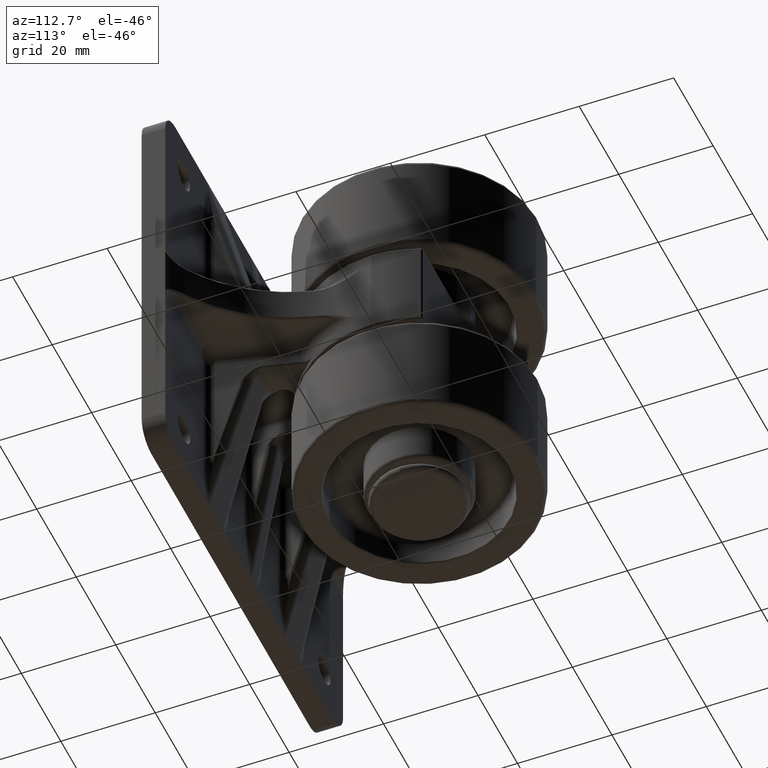
[diagram: clean part render]
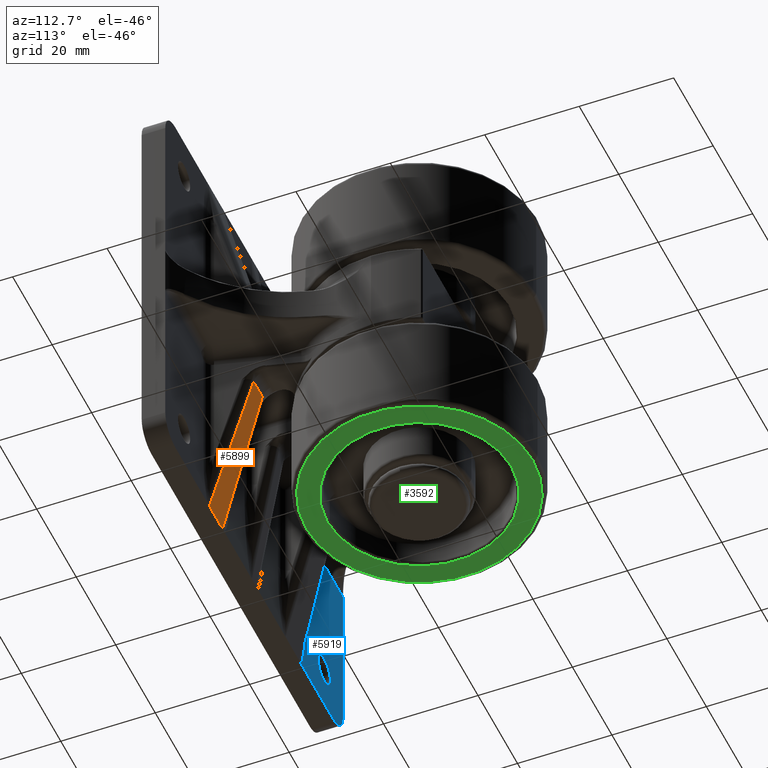
[diagram: same view with three faces highlighted in distinct colors, each labeled with its STEP entity id]
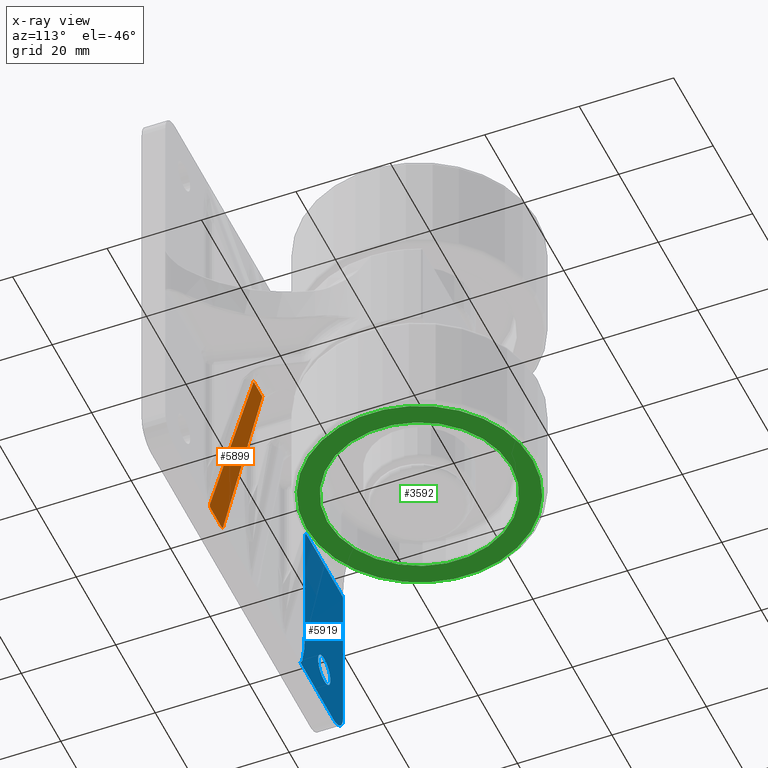
[diagram: x-ray of the same camera — body ghosted, the three highlighted faces saturated]
A machine part, auxiliary view with three faces highlighted in distinct colors.
The next image is the same camera in x-ray (body ghosted, the three faces saturated) — at least one of them is partly hidden behind the body in this view.
Their STEP definitions:

[orange] entity #5899 — the highlighted planar face has unit normal (0, -0.9701, 0.2425).
#46 = VERTEX_POINT ( 'NONE', #3412 ) ;
#1014 = EDGE_CURVE ( 'NONE', #4439, #14227, #8808, .T. ) ;
#1545 = VECTOR ( 'NONE', #16848, 1000.000000000000100 ) ;
#1909 = VECTOR ( 'NONE', #9822, 999.9999999999998900 ) ;
#2310 = CARTESIAN_POINT ( 'NONE',  ( 45.00000000000000700, -35.00000000000000000, -28.43722441833322600 ) ) ;
#2373 = PLANE ( 'NONE',  #8113 ) ;
#2593 = VERTEX_POINT ( 'NONE', #6620 ) ;
#3112 = EDGE_CURVE ( 'NONE', #2593, #8558, #12037, .T. ) ;
#3412 = CARTESIAN_POINT ( 'NONE',  ( 11.27239312489100000, -26.56809828122275300, -28.99999999999999600 ) ) ;
#3593 = ORIENTED_EDGE ( 'NONE', *, *, #1014, .T. ) ;
#3681 = DIRECTION ( 'NONE',  ( -0.2425356250363329700, -0.9701425001453318800, 0.0000000000000000000 ) ) ;
#4439 = VERTEX_POINT ( 'NONE', #14460 ) ;
#4549 = VERTEX_POINT ( 'NONE', #17006 ) ;
#5118 = CARTESIAN_POINT ( 'NONE',  ( 44.76114000116265100, -34.94028500029065000, -22.33299336004344900 ) ) ;
#5208 = CARTESIAN_POINT ( 'NONE',  ( 44.90991532345560000, -34.97747883086390200, -22.54067233801642400 ) ) ;
#5502 = VECTOR ( 'NONE', #16008, 1000.000000000000000 ) ;
#5568 = ORIENTED_EDGE ( 'NONE', *, *, #14945, .T. ) ;
#5733 = VECTOR ( 'NONE', #10384, 1000.000000000000000 ) ;
#5899 = ADVANCED_FACE ( 'NONE', ( #12011 ), #2373, .F. ) ;
#6168 = CARTESIAN_POINT ( 'NONE',  ( 9.000000000000000000, -26.00000000000000000, -90.00005000000000200 ) ) ;
#6339 = CARTESIAN_POINT ( 'NONE',  ( 44.76114000116265100, -34.94028500029065000, -28.99999999999999600 ) ) ;
#6434 = CARTESIAN_POINT ( 'NONE',  ( 44.76114000116265100, -34.94028500029065000, -22.33299336004344900 ) ) ;
#6491 = CARTESIAN_POINT ( 'NONE',  ( 45.00000000000000000, -35.00000000000000000, -22.91015419044200000 ) ) ;
#6620 = CARTESIAN_POINT ( 'NONE',  ( 11.27239312489100000, -26.56809828122275300, -24.57631403030020000 ) ) ;
#7347 = CARTESIAN_POINT ( 'NONE',  ( 9.000000000000000000, -26.00000000000000000, -28.99999999999999600 ) ) ;
#7559 = CARTESIAN_POINT ( 'NONE',  ( 44.98443717595908700, -34.99610929398976100, -28.56024113981465000 ) ) ;
#7686 = CARTESIAN_POINT ( 'NONE',  ( 45.00000000000000000, -35.00000000000000000, -90.00005000000000200 ) ) ;
#8113 = AXIS2_PLACEMENT_3D ( 'NONE', #6168, #3681, #12939 ) ;
#8558 = VERTEX_POINT ( 'NONE', #5118 ) ;
#8808 = B_SPLINE_CURVE_WITH_KNOTS ( 'NONE', 3,
 ( #8853, #2310, #7559, #10900, #13511, #15759, #17072, #9517 ),
 .UNSPECIFIED., .F., .F.,
 ( 4, 2, 2, 4 ),
 ( 0.0000000000000000000, 0.0003718323462449313800, 0.0005577485193673921400, 0.0007436646924898529000 ),
 .UNSPECIFIED. ) ;
#8853 = CARTESIAN_POINT ( 'NONE',  ( 45.00000000000000000, -35.00000000000000000, -28.31141150424624800 ) ) ;
#9161 = CARTESIAN_POINT ( 'NONE',  ( 11.27239312489100000, -26.56809828122275300, -90.00005000000000200 ) ) ;
#9302 = LINE ( 'NONE', #7686, #5733 ) ;
#9517 = CARTESIAN_POINT ( 'NONE',  ( 44.76114000116265100, -34.94028500029065000, -28.99999999999999600 ) ) ;
#9822 = DIRECTION ( 'NONE',  ( 0.9681003458863748400, -0.2420250864715939900, 0.06485042646813468600 ) ) ;
#9882 = CARTESIAN_POINT ( 'NONE',  ( 45.09735276097929800, -35.02433819024479800, -22.31047137567394500 ) ) ;
#10384 = DIRECTION ( 'NONE',  ( 0.0000000000000000000, 0.0000000000000000000, 1.000000000000000000 ) ) ;
#10536 = CARTESIAN_POINT ( 'NONE',  ( 44.84907020209227800, -34.96226755052306600, -22.42524144705293700 ) ) ;
#10667 = ORIENTED_EDGE ( 'NONE', *, *, #15990, .T. ) ;
#10900 = CARTESIAN_POINT ( 'NONE',  ( 44.92767085061632300, -34.98191771265408800, -28.73876123228268800 ) ) ;
#11239 = EDGE_LOOP ( 'NONE', ( #5568, #12252, #15908, #10667, #12792, #3593 ) ) ;
#12011 = FACE_OUTER_BOUND ( 'NONE', #11239, .T. ) ;
#12037 = LINE ( 'NONE', #9882, #1909 ) ;
#12252 = ORIENTED_EDGE ( 'NONE', *, *, #13214, .T. ) ;
#12647 = LINE ( 'NONE', #9161, #5502 ) ;
#12792 = ORIENTED_EDGE ( 'NONE', *, *, #14250, .F. ) ;
#12939 = DIRECTION ( 'NONE',  ( 0.9701425001453318800, -0.2425356250363329700, 0.0000000000000000000 ) ) ;
#13214 = EDGE_CURVE ( 'NONE', #46, #2593, #12647, .T. ) ;
#13511 = CARTESIAN_POINT ( 'NONE',  ( 44.90291675263617300, -34.97572918815905000, -28.79699370719625800 ) ) ;
#13904 = B_SPLINE_CURVE_WITH_KNOTS ( 'NONE', 3,
 ( #6434, #10536, #5208, #14595, #6491, #15994 ),
 .UNSPECIFIED., .F., .F.,
 ( 4, 2, 4 ),
 ( -8.982169361653270200E-006, 0.0003789894285219918000, 0.0007669610264056369300 ),
 .UNSPECIFIED. ) ;
#14227 = VERTEX_POINT ( 'NONE', #6339 ) ;
#14250 = EDGE_CURVE ( 'NONE', #4439, #4549, #9302, .T. ) ;
#14460 = CARTESIAN_POINT ( 'NONE',  ( 45.00000000000000000, -35.00000000000000000, -28.31141150424624800 ) ) ;
#14595 = CARTESIAN_POINT ( 'NONE',  ( 44.98479057248556500, -34.99619764312139800, -22.78440645383541600 ) ) ;
#14945 = EDGE_CURVE ( 'NONE', #14227, #46, #15221, .T. ) ;
#15221 = LINE ( 'NONE', #7347, #1545 ) ;
#15759 = CARTESIAN_POINT ( 'NONE',  ( 44.84166357963565700, -34.96041589490890500, -28.90472277921506700 ) ) ;
#15908 = ORIENTED_EDGE ( 'NONE', *, *, #3112, .T. ) ;
#15990 = EDGE_CURVE ( 'NONE', #8558, #4549, #13904, .T. ) ;
#15994 = CARTESIAN_POINT ( 'NONE',  ( 45.00000000000000000, -35.00000000000000000, -23.03855724368759900 ) ) ;
#16008 = DIRECTION ( 'NONE',  ( 0.0000000000000000000, 0.0000000000000000000, 1.000000000000000000 ) ) ;
#16848 = DIRECTION ( 'NONE',  ( -0.9701425001453318800, 0.2425356250363329700, 0.0000000000000000000 ) ) ;
#17006 = CARTESIAN_POINT ( 'NONE',  ( 45.00000000000000000, -35.00000000000000000, -23.03855724368759900 ) ) ;
#17072 = CARTESIAN_POINT ( 'NONE',  ( 44.80338272205052200, -34.95084568051262200, -28.95590282886919900 ) ) ;

[blue] entity #5919 — the highlighted planar face has unit normal (0, -1, 0).
#205 = LINE ( 'NONE', #6432, #16957 ) ;
#466 = EDGE_CURVE ( 'NONE', #8435, #7452, #6379, .T. ) ;
#719 =( BOUNDED_CURVE ( )  B_SPLINE_CURVE ( 3, ( #16302, #8111, #5561, #14986 ),
 .UNSPECIFIED., .F., .F. ) 
 B_SPLINE_CURVE_WITH_KNOTS ( ( 4, 4 ),
 ( 3.141592653589793100, 4.712388980384689700 ),
 .UNSPECIFIED. ) 
 CURVE ( )  GEOMETRIC_REPRESENTATION_ITEM ( )  RATIONAL_B_SPLINE_CURVE ( ( 1.000000000000000000, 0.8047378541243649400, 0.8047378541243649400, 1.000000000000000000 ) ) 
 REPRESENTATION_ITEM ( '' )  );
#864 = EDGE_LOOP ( 'NONE', ( #7054, #1249 ) ) ;
#928 = LINE ( 'NONE', #12136, #3924 ) ;
#1221 = CARTESIAN_POINT ( 'NONE',  ( 39.33976415181397400, -35.00000000000000000, -70.76831576376885400 ) ) ;
#1249 = ORIENTED_EDGE ( 'NONE', *, *, #1804, .F. ) ;
#1271 = EDGE_CURVE ( 'NONE', #15076, #5981, #9309, .T. ) ;
#1276 = CARTESIAN_POINT ( 'NONE',  ( 45.00000000000000000, -35.00000000000000000, -68.34152482668290000 ) ) ;
#1429 = CIRCLE ( 'NONE', #4564, 4.999999999999997300 ) ;
#1723 = VERTEX_POINT ( 'NONE', #4187 ) ;
#1804 = EDGE_CURVE ( 'NONE', #7452, #8435, #11028, .T. ) ;
#1869 = CARTESIAN_POINT ( 'NONE',  ( 6.149850896737677700, -35.00000000000000000, -89.95658398666535000 ) ) ;
#2139 = CARTESIAN_POINT ( 'NONE',  ( 0.0000000000000000000, -35.00000000000000000, -70.76831576376879700 ) ) ;
#2432 = DIRECTION ( 'NONE',  ( 1.000000000000000000, 0.0000000000000000000, 0.0000000000000000000 ) ) ;
#2488 = CARTESIAN_POINT ( 'NONE',  ( 43.85381414279417100, -35.00000000000000000, -69.86335424353150400 ) ) ;
#2841 = AXIS2_PLACEMENT_3D ( 'NONE', #14443, #11768, #7796 ) ;
#3084 = EDGE_LOOP ( 'NONE', ( #7316, #5312, #4134, #9319, #8734, #15449, #6737, #7333 ) ) ;
#3160 = CARTESIAN_POINT ( 'NONE',  ( 6.000000000000000000, -35.00000000000000000, -89.89307112336760500 ) ) ;
#3404 = CARTESIAN_POINT ( 'NONE',  ( 7.000000000000000000, -35.00000000000000000, -70.76831576376879700 ) ) ;
#3796 = CARTESIAN_POINT ( 'NONE',  ( 45.00000000000000000, -35.00000000000000000, -68.34152482668290000 ) ) ;
#3924 = VECTOR ( 'NONE', #10788, 1000.000000000000000 ) ;
#4134 = ORIENTED_EDGE ( 'NONE', *, *, #13320, .T. ) ;
#4151 =( BOUNDED_CURVE ( )  B_SPLINE_CURVE ( 3, ( #11761, #1221, #2488, #3796 ),
 .UNSPECIFIED., .F., .T. ) 
 B_SPLINE_CURVE_WITH_KNOTS ( ( 4, 4 ),
 ( 4.982407733297762300, 6.126387574059618800 ),
 .UNSPECIFIED. ) 
 CURVE ( )  GEOMETRIC_REPRESENTATION_ITEM ( )  RATIONAL_B_SPLINE_CURVE ( ( 1.000000000000000000, 0.8938836561245935300, 0.8938836561245935300, 1.000000000000000000 ) ) 
 REPRESENTATION_ITEM ( '' )  );
#4187 = CARTESIAN_POINT ( 'NONE',  ( 6.000000000000000000, -35.00000000000000000, -71.80359194417890500 ) ) ;
#4445 = CARTESIAN_POINT ( 'NONE',  ( 32.89489347040505200, -35.00000000000000000, -70.76831576376879700 ) ) ;
#4564 = AXIS2_PLACEMENT_3D ( 'NONE', #6563, #16063, #7901 ) ;
#4900 = CARTESIAN_POINT ( 'NONE',  ( 45.00000000000000000, -35.00000000000000000, -84.99999999999998600 ) ) ;
#5312 = ORIENTED_EDGE ( 'NONE', *, *, #13426, .T. ) ;
#5561 = CARTESIAN_POINT ( 'NONE',  ( 6.000000000000000000, -35.00000000000000000, -71.19714119849648200 ) ) ;
#5618 = EDGE_CURVE ( 'NONE', #16547, #1723, #719, .T. ) ;
#5739 = VECTOR ( 'NONE', #15310, 1000.000000000000000 ) ;
#5919 = ADVANCED_FACE ( 'NONE', ( #8360, #16046 ), #6230, .F. ) ;
#5944 = EDGE_CURVE ( 'NONE', #10999, #5981, #4151, .T. ) ;
#5981 = VERTEX_POINT ( 'NONE', #1276 ) ;
#6159 = CARTESIAN_POINT ( 'NONE',  ( 38.60000000000659500, -35.00000000000000000, -80.50000000000659400 ) ) ;
#6230 = PLANE ( 'NONE',  #10875 ) ;
#6379 = CIRCLE ( 'NONE', #2841, 3.099999999999998800 ) ;
#6432 = CARTESIAN_POINT ( 'NONE',  ( -45.00000000000000000, -35.00000000000000000, -90.00000000000000000 ) ) ;
#6563 = CARTESIAN_POINT ( 'NONE',  ( 40.00000000000000000, -35.00000000000000000, -84.99999999999998600 ) ) ;
#6737 = ORIENTED_EDGE ( 'NONE', *, *, #1271, .F. ) ;
#7054 = ORIENTED_EDGE ( 'NONE', *, *, #466, .F. ) ;
#7316 = ORIENTED_EDGE ( 'NONE', *, *, #11766, .F. ) ;
#7317 = DIRECTION ( 'NONE',  ( 1.000000000000000000, -0.0000000000000000000, -0.0000000000000000000 ) ) ;
#7333 = ORIENTED_EDGE ( 'NONE', *, *, #9113, .T. ) ;
#7452 = VERTEX_POINT ( 'NONE', #6159 ) ;
#7738 = CARTESIAN_POINT ( 'NONE',  ( 6.467218933359990100, -35.00000000000000000, -90.00000000000000000 ) ) ;
#7796 = DIRECTION ( 'NONE',  ( -1.000000000000000000, 0.0000000000000000000, 0.0000000000000000000 ) ) ;
#7901 = DIRECTION ( 'NONE',  ( 1.000000000000000000, 0.0000000000000000000, 0.0000000000000000000 ) ) ;
#8111 = CARTESIAN_POINT ( 'NONE',  ( 6.414213562373095800, -35.00000000000000000, -70.76831576376882500 ) ) ;
#8360 = FACE_BOUND ( 'NONE', #864, .T. ) ;
#8367 = VECTOR ( 'NONE', #7317, 1000.000000000000000 ) ;
#8435 = VERTEX_POINT ( 'NONE', #14122 ) ;
#8727 = AXIS2_PLACEMENT_3D ( 'NONE', #9264, #9840, #9859 ) ;
#8734 = ORIENTED_EDGE ( 'NONE', *, *, #16880, .T. ) ;
#9113 = EDGE_CURVE ( 'NONE', #15076, #10301, #1429, .T. ) ;
#9264 = CARTESIAN_POINT ( 'NONE',  ( 35.50000000000659400, -35.00000000000000000, -80.50000000000659400 ) ) ;
#9309 = LINE ( 'NONE', #16551, #5739 ) ;
#9319 = ORIENTED_EDGE ( 'NONE', *, *, #5618, .F. ) ;
#9708 = CARTESIAN_POINT ( 'NONE',  ( 6.306265749622666000, -35.00000000000000000, -89.99165059895679500 ) ) ;
#9840 = DIRECTION ( 'NONE',  ( 0.0000000000000000000, 1.000000000000000000, 0.0000000000000000000 ) ) ;
#9859 = DIRECTION ( 'NONE',  ( -1.000000000000000000, 0.0000000000000000000, 0.0000000000000000000 ) ) ;
#10301 = VERTEX_POINT ( 'NONE', #14462 ) ;
#10327 = DIRECTION ( 'NONE',  ( 0.0000000000000000000, -1.000000000000000000, 0.0000000000000000000 ) ) ;
#10788 = DIRECTION ( 'NONE',  ( 0.0000000000000000000, 0.0000000000000000000, 1.000000000000000000 ) ) ;
#10875 = AXIS2_PLACEMENT_3D ( 'NONE', #15709, #10327, #2432 ) ;
#10999 = VERTEX_POINT ( 'NONE', #4445 ) ;
#11028 = CIRCLE ( 'NONE', #8727, 3.099999999999998800 ) ;
#11081 = CARTESIAN_POINT ( 'NONE',  ( 6.071749031197340300, -35.00000000000000000, -89.92854436393230300 ) ) ;
#11761 = CARTESIAN_POINT ( 'NONE',  ( 32.89489347040505200, -35.00000000000000000, -70.76831576376879700 ) ) ;
#11766 = EDGE_CURVE ( 'NONE', #13185, #10301, #205, .T. ) ;
#11768 = DIRECTION ( 'NONE',  ( 0.0000000000000000000, 1.000000000000000000, 0.0000000000000000000 ) ) ;
#12019 = LINE ( 'NONE', #2139, #8367 ) ;
#12136 = CARTESIAN_POINT ( 'NONE',  ( 6.000000000000000000, -35.00000000000000000, -69.23366178781090200 ) ) ;
#12633 = VERTEX_POINT ( 'NONE', #12849 ) ;
#12849 = CARTESIAN_POINT ( 'NONE',  ( 6.000000000000000000, -35.00000000000000000, -89.89307112336760500 ) ) ;
#13185 = VERTEX_POINT ( 'NONE', #7738 ) ;
#13320 = EDGE_CURVE ( 'NONE', #12633, #1723, #928, .T. ) ;
#13426 = EDGE_CURVE ( 'NONE', #13185, #12633, #14898, .T. ) ;
#13687 = CARTESIAN_POINT ( 'NONE',  ( 6.467218933359990100, -35.00000000000000000, -90.00000000000000000 ) ) ;
#14122 = CARTESIAN_POINT ( 'NONE',  ( 32.40000000000660000, -35.00000000000000000, -80.50000000000659400 ) ) ;
#14443 = CARTESIAN_POINT ( 'NONE',  ( 35.50000000000659400, -35.00000000000000000, -80.50000000000659400 ) ) ;
#14462 = CARTESIAN_POINT ( 'NONE',  ( 40.00000000000000000, -35.00000000000000000, -90.00000000000000000 ) ) ;
#14898 = B_SPLINE_CURVE_WITH_KNOTS ( 'NONE', 3,
 ( #13687, #16457, #9708, #1869, #11081, #3160 ),
 .UNSPECIFIED., .F., .F.,
 ( 4, 2, 4 ),
 ( 9.540979117872439000E-018, 0.0002401176138177106700, 0.0004802352276354117900 ),
 .UNSPECIFIED. ) ;
#14986 = CARTESIAN_POINT ( 'NONE',  ( 6.000000000000000000, -35.00000000000000000, -71.80359194417890500 ) ) ;
#15076 = VERTEX_POINT ( 'NONE', #4900 ) ;
#15310 = DIRECTION ( 'NONE',  ( 0.0000000000000000000, 0.0000000000000000000, 1.000000000000000000 ) ) ;
#15449 = ORIENTED_EDGE ( 'NONE', *, *, #5944, .T. ) ;
#15709 = CARTESIAN_POINT ( 'NONE',  ( 0.0000000000000000000, -35.00000000000000000, -45.00000000000000000 ) ) ;
#15934 = DIRECTION ( 'NONE',  ( 1.000000000000000000, 0.0000000000000000000, 1.541976423090494900E-016 ) ) ;
#16046 = FACE_OUTER_BOUND ( 'NONE', #3084, .T. ) ;
#16063 = DIRECTION ( 'NONE',  ( -0.0000000000000000000, 1.000000000000000000, -0.0000000000000000000 ) ) ;
#16302 = CARTESIAN_POINT ( 'NONE',  ( 7.000000000000000000, -35.00000000000000000, -70.76831576376879700 ) ) ;
#16457 = CARTESIAN_POINT ( 'NONE',  ( 6.386033204149100600, -35.00000000000000700, -90.00000000000001400 ) ) ;
#16547 = VERTEX_POINT ( 'NONE', #3404 ) ;
#16551 = CARTESIAN_POINT ( 'NONE',  ( 45.00000000000000000, -35.00000000000000000, -90.00000000000000000 ) ) ;
#16880 = EDGE_CURVE ( 'NONE', #16547, #10999, #12019, .T. ) ;
#16957 = VECTOR ( 'NONE', #15934, 1000.000000000000000 ) ;

[green] entity #3592 — the highlighted planar face has unit normal (0, 0, -1).
#130 = AXIS2_PLACEMENT_3D ( 'NONE', #5109, #1993, #16520 ) ;
#285 = CARTESIAN_POINT ( 'NONE',  ( 34.00000000000005700, 0.0000000000000000000, -45.00000000000000000 ) ) ;
#839 = VERTEX_POINT ( 'NONE', #15533 ) ;
#1231 = ORIENTED_EDGE ( 'NONE', *, *, #3497, .T. ) ;
#1359 = CARTESIAN_POINT ( 'NONE',  ( 34.00000000000005700, -19.50000000000000000, -45.00000000000000000 ) ) ;
#1433 = CARTESIAN_POINT ( 'NONE',  ( 34.00000000000005700, 0.0000000000000000000, -45.00000000000000000 ) ) ;
#1534 = DIRECTION ( 'NONE',  ( 0.0000000000000000000, 1.000000000000000000, 0.0000000000000000000 ) ) ;
#1993 = DIRECTION ( 'NONE',  ( 1.000000000000000000, 0.0000000000000000000, 0.0000000000000000000 ) ) ;
#2698 = CIRCLE ( 'NONE', #16381, 19.50000000000000000 ) ;
#2984 = AXIS2_PLACEMENT_3D ( 'NONE', #15336, #5879, #11101 ) ;
#3424 = AXIS2_PLACEMENT_3D ( 'NONE', #8091, #17149, #5544 ) ;
#3497 = EDGE_CURVE ( 'NONE', #839, #10543, #10980, .T. ) ;
#3592 = ADVANCED_FACE ( 'NONE', ( #12833, #6494 ), #8596, .T. ) ;
#3600 = EDGE_CURVE ( 'NONE', #7626, #11780, #2698, .T. ) ;
#4247 = EDGE_CURVE ( 'NONE', #10543, #839, #15157, .T. ) ;
#5109 = CARTESIAN_POINT ( 'NONE',  ( 34.00000000000005700, 0.0000000000000000000, -45.00000000000000000 ) ) ;
#5272 = CARTESIAN_POINT ( 'NONE',  ( 34.00000000000005700, 19.50000000000000000, -45.00000000000000000 ) ) ;
#5544 = DIRECTION ( 'NONE',  ( 0.0000000000000000000, 1.000000000000000000, 0.0000000000000000000 ) ) ;
#5879 = DIRECTION ( 'NONE',  ( 1.000000000000000000, 0.0000000000000000000, 0.0000000000000000000 ) ) ;
#6494 = FACE_OUTER_BOUND ( 'NONE', #10089, .T. ) ;
#6631 = ORIENTED_EDGE ( 'NONE', *, *, #11434, .T. ) ;
#7177 = CIRCLE ( 'NONE', #10177, 19.50000000000000000 ) ;
#7436 = ORIENTED_EDGE ( 'NONE', *, *, #3600, .T. ) ;
#7626 = VERTEX_POINT ( 'NONE', #5272 ) ;
#8091 = CARTESIAN_POINT ( 'NONE',  ( 34.00000000000005700, 0.0000000000000000000, -45.00000000000000000 ) ) ;
#8596 = PLANE ( 'NONE',  #130 ) ;
#9061 = EDGE_LOOP ( 'NONE', ( #7436, #6631 ) ) ;
#9335 = DIRECTION ( 'NONE',  ( -1.000000000000000000, -0.0000000000000000000, -0.0000000000000000000 ) ) ;
#10089 = EDGE_LOOP ( 'NONE', ( #16605, #1231 ) ) ;
#10177 = AXIS2_PLACEMENT_3D ( 'NONE', #285, #9335, #1534 ) ;
#10543 = VERTEX_POINT ( 'NONE', #13897 ) ;
#10980 = CIRCLE ( 'NONE', #2984, 24.00000000000000000 ) ;
#11101 = DIRECTION ( 'NONE',  ( 0.0000000000000000000, 1.000000000000000000, 0.0000000000000000000 ) ) ;
#11434 = EDGE_CURVE ( 'NONE', #11780, #7626, #7177, .T. ) ;
#11780 = VERTEX_POINT ( 'NONE', #1359 ) ;
#12833 = FACE_BOUND ( 'NONE', #9061, .T. ) ;
#13897 = CARTESIAN_POINT ( 'NONE',  ( 34.00000000000005700, 24.00000000000000000, -45.00000000000000000 ) ) ;
#14371 = DIRECTION ( 'NONE',  ( 0.0000000000000000000, 1.000000000000000000, 0.0000000000000000000 ) ) ;
#15157 = CIRCLE ( 'NONE', #3424, 24.00000000000000000 ) ;
#15336 = CARTESIAN_POINT ( 'NONE',  ( 34.00000000000005700, 0.0000000000000000000, -45.00000000000000000 ) ) ;
#15533 = CARTESIAN_POINT ( 'NONE',  ( 34.00000000000005700, -24.00000000000000000, -45.00000000000000000 ) ) ;
#16381 = AXIS2_PLACEMENT_3D ( 'NONE', #1433, #16925, #14371 ) ;
#16520 = DIRECTION ( 'NONE',  ( 0.0000000000000000000, 1.000000000000000000, 0.0000000000000000000 ) ) ;
#16605 = ORIENTED_EDGE ( 'NONE', *, *, #4247, .T. ) ;
#16925 = DIRECTION ( 'NONE',  ( -1.000000000000000000, -0.0000000000000000000, -0.0000000000000000000 ) ) ;
#17149 = DIRECTION ( 'NONE',  ( 1.000000000000000000, 0.0000000000000000000, 0.0000000000000000000 ) ) ;